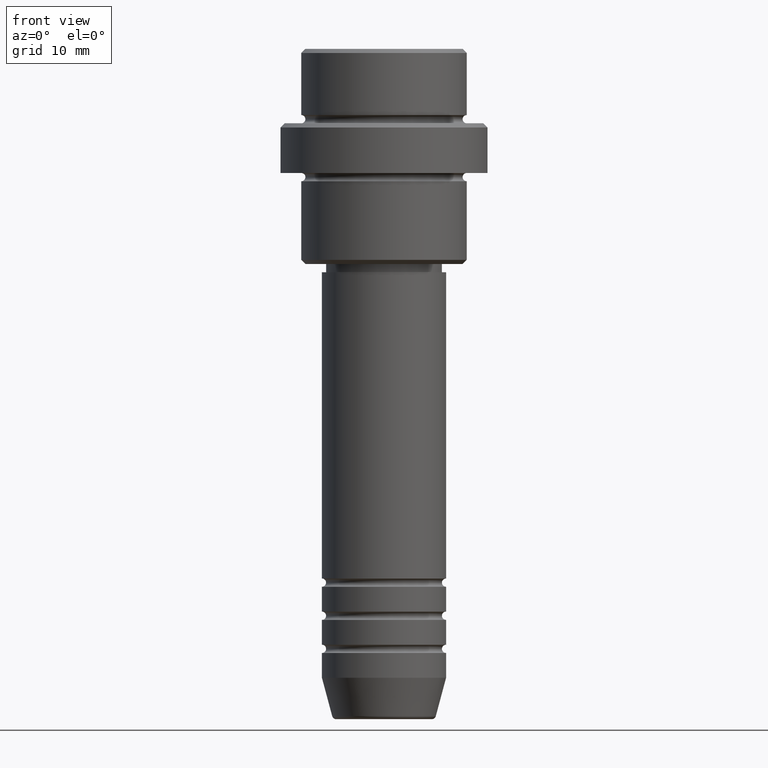
[diagram: clean part render]
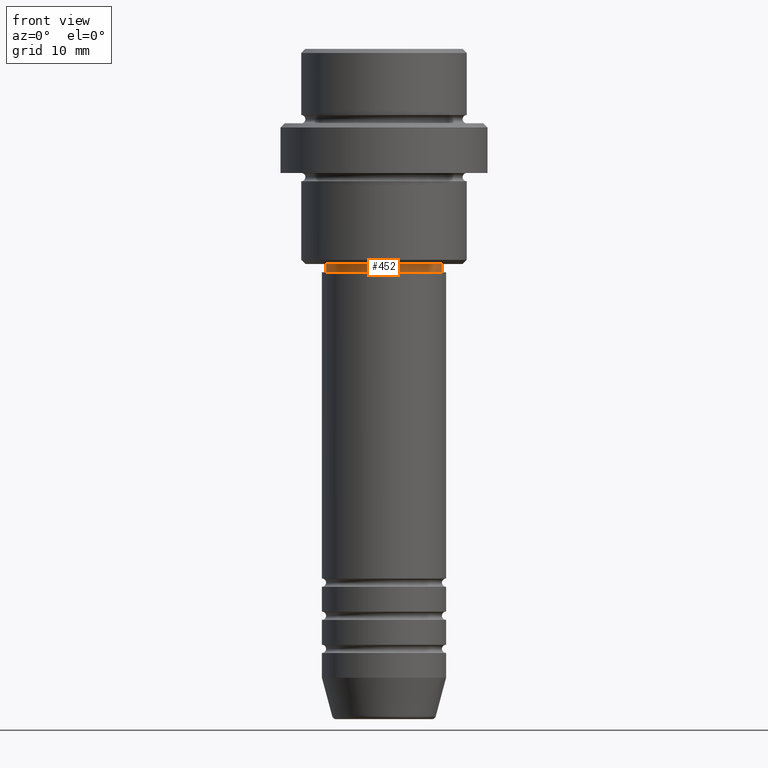
[diagram: same view with one face highlighted and labeled with its STEP entity id]
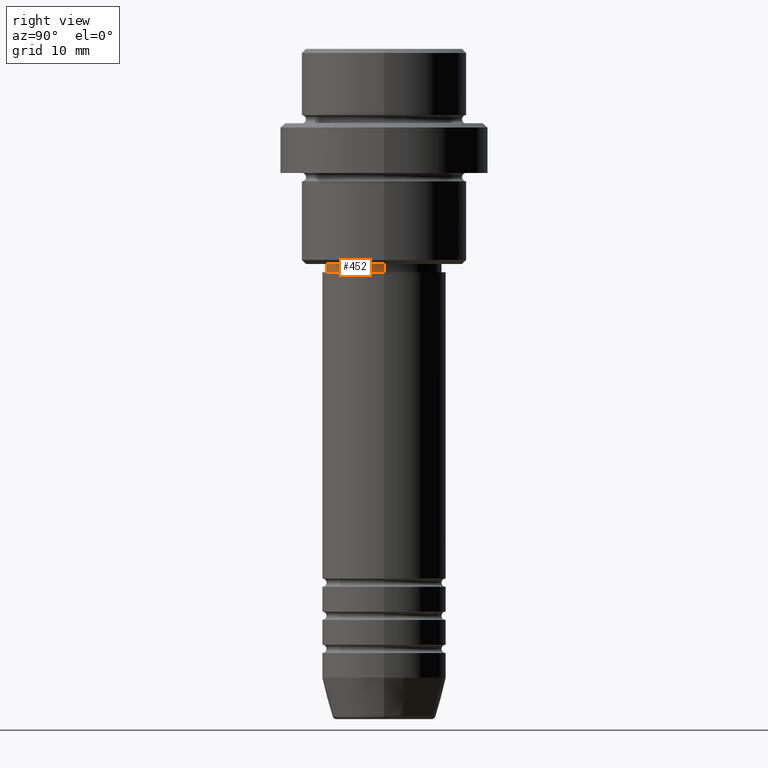
[diagram: same view with one face highlighted and labeled with its STEP entity id]
A machine part, front view. The second image highlights one B-rep face of the part: STEP entity #452.
A second angle (right view) of the same face is appended — the face is thin or edge-on in the first view.
In plain terms, the highlighted cylindrical surface (partial cylindrical patch) has radius 7 mm, axis along (-0, -0, 1).
Its self-contained STEP definition (entity closure, byte-faithful):
#30 = ORIENTED_EDGE ( 'NONE', *, *, #464, .F. ) ;
#54 = VECTOR ( 'NONE', #201, 1000.000000000000000 ) ;
#64 = CARTESIAN_POINT ( 'NONE',  ( 6.999999999999993783, 0.000000000000000000, -26.00000000000000355 ) ) ;
#92 = DIRECTION ( 'NONE',  ( 1.000000000000000000, 0.000000000000000000, 0.000000000000000000 ) ) ;
#116 = CARTESIAN_POINT ( 'NONE',  ( 0.000000000000000000, 0.000000000000000000, 0.000000000000000000 ) ) ;
#201 = DIRECTION ( 'NONE',  ( -0.000000000000000000, -0.000000000000000000, 1.000000000000000000 ) ) ;
#215 = VECTOR ( 'NONE', #390, 1000.000000000000000 ) ;
#230 = EDGE_CURVE ( 'NONE', #1169, #301, #1083, .T. ) ;
#254 = CARTESIAN_POINT ( 'NONE',  ( 0.000000000000000000, 0.000000000000000000, -27.00000000000000355 ) ) ;
#301 = VERTEX_POINT ( 'NONE', #64 ) ;
#390 = DIRECTION ( 'NONE',  ( -0.000000000000000000, -0.000000000000000000, 1.000000000000000000 ) ) ;
#417 = DIRECTION ( 'NONE',  ( 1.000000000000000000, 0.000000000000000000, 0.000000000000000000 ) ) ;
#432 = EDGE_CURVE ( 'NONE', #526, #1368, #980, .T. ) ;
#452 = ADVANCED_FACE ( 'NONE', ( #650 ), #1100, .T. ) ;
#464 = EDGE_CURVE ( 'NONE', #1368, #301, #1111, .T. ) ;
#499 = CARTESIAN_POINT ( 'NONE',  ( 6.999999999999993783, 0.000000000000000000, -27.00000000000000355 ) ) ;
#526 = VERTEX_POINT ( 'NONE', #703 ) ;
#548 = DIRECTION ( 'NONE',  ( -0.000000000000000000, -0.000000000000000000, 1.000000000000000000 ) ) ;
#606 = EDGE_LOOP ( 'NONE', ( #796, #1312, #1191, #30 ) ) ;
#647 = CIRCLE ( 'NONE', #694, 6.999999999999993783 ) ;
#650 = FACE_OUTER_BOUND ( 'NONE', #606, .T. ) ;
#656 = DIRECTION ( 'NONE',  ( -0.000000000000000000, -0.000000000000000000, 1.000000000000000000 ) ) ;
#679 = EDGE_CURVE ( 'NONE', #526, #1169, #647, .T. ) ;
#684 = DIRECTION ( 'NONE',  ( 1.000000000000000000, 0.000000000000000000, 0.000000000000000000 ) ) ;
#694 = AXIS2_PLACEMENT_3D ( 'NONE', #254, #1002, #684 ) ;
#703 = CARTESIAN_POINT ( 'NONE',  ( -6.999999999999993783, 8.572527594031465301E-16, -27.00000000000000355 ) ) ;
#746 = AXIS2_PLACEMENT_3D ( 'NONE', #116, #548, #417 ) ;
#796 = ORIENTED_EDGE ( 'NONE', *, *, #432, .F. ) ;
#879 = CARTESIAN_POINT ( 'NONE',  ( -6.999999999999993783, 8.572527594031465301E-16, 0.000000000000000000 ) ) ;
#937 = CARTESIAN_POINT ( 'NONE',  ( -6.999999999999993783, 8.572527594031465301E-16, -26.00000000000000355 ) ) ;
#980 = LINE ( 'NONE', #879, #54 ) ;
#1002 = DIRECTION ( 'NONE',  ( -0.000000000000000000, -0.000000000000000000, 1.000000000000000000 ) ) ;
#1077 = CARTESIAN_POINT ( 'NONE',  ( 0.000000000000000000, 0.000000000000000000, -26.00000000000000355 ) ) ;
#1083 = LINE ( 'NONE', #1379, #215 ) ;
#1100 = CYLINDRICAL_SURFACE ( 'NONE', #746, 6.999999999999993783 ) ;
#1111 = CIRCLE ( 'NONE', #1134, 6.999999999999993783 ) ;
#1134 = AXIS2_PLACEMENT_3D ( 'NONE', #1077, #656, #92 ) ;
#1169 = VERTEX_POINT ( 'NONE', #499 ) ;
#1191 = ORIENTED_EDGE ( 'NONE', *, *, #230, .T. ) ;
#1312 = ORIENTED_EDGE ( 'NONE', *, *, #679, .T. ) ;
#1368 = VERTEX_POINT ( 'NONE', #937 ) ;
#1379 = CARTESIAN_POINT ( 'NONE',  ( 6.999999999999993783, 0.000000000000000000, 0.000000000000000000 ) ) ;